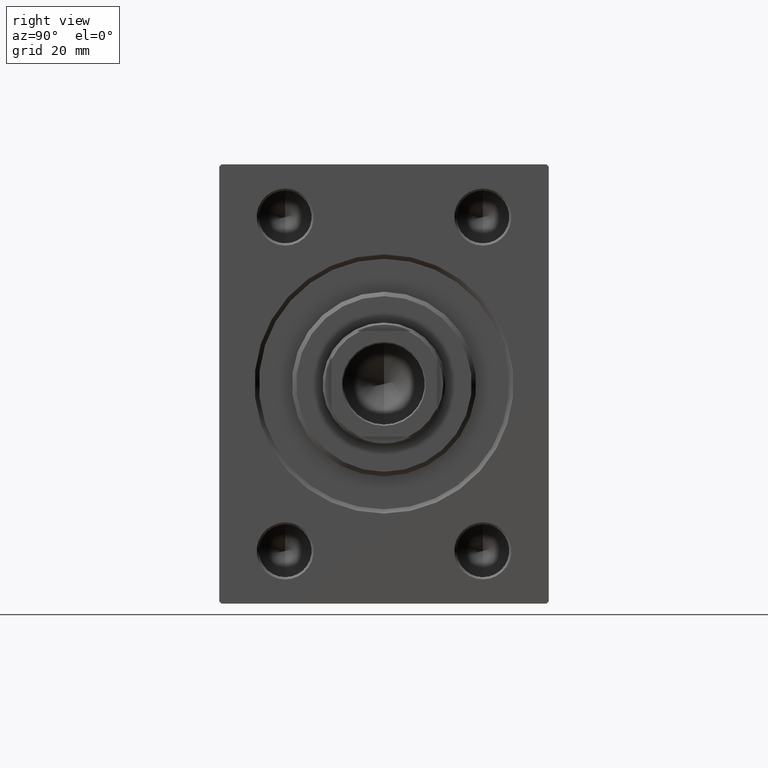
[diagram: clean part render]
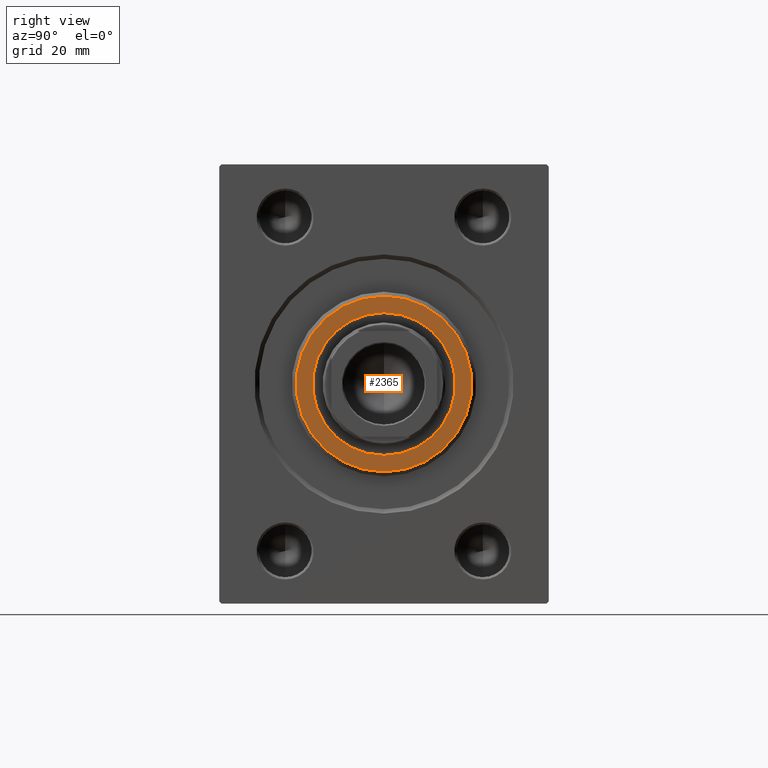
[diagram: same view with one face highlighted and labeled with its STEP entity id]
A machine part, right view. The second image highlights one B-rep face of the part: STEP entity #2365.
In plain terms, the highlighted planar face has unit normal (1, 0, 0).
Its self-contained STEP definition (entity closure, byte-faithful):
#2244 = VERTEX_POINT ( 'NONE', #43933 ) ;
#2365 = ADVANCED_FACE ( 'NONE', ( #35209, #6382 ), #30725, .T. ) ;
#2790 = CIRCLE ( 'NONE', #10813, 16.25000000000000000 ) ;
#3818 = CARTESIAN_POINT ( 'NONE',  ( 3.000000000000000000, 0.000000000000000000, 0.000000000000000000 ) ) ;
#4583 = DIRECTION ( 'NONE',  ( 0.000000000000000000, 0.000000000000000000, -1.000000000000000000 ) ) ;
#6382 = FACE_BOUND ( 'NONE', #25617, .T. ) ;
#10813 = AXIS2_PLACEMENT_3D ( 'NONE', #20398, #30166, #44504 ) ;
#11504 = CIRCLE ( 'NONE', #37617, 16.25000000000000000 ) ;
#11850 = EDGE_CURVE ( 'NONE', #41216, #26277, #35326, .T. ) ;
#13533 = VERTEX_POINT ( 'NONE', #35359 ) ;
#13552 = AXIS2_PLACEMENT_3D ( 'NONE', #30432, #13832, #16800 ) ;
#13832 = DIRECTION ( 'NONE',  ( 1.000000000000000000, -0.000000000000000000, 0.000000000000000000 ) ) ;
#14375 = ORIENTED_EDGE ( 'NONE', *, *, #36648, .F. ) ;
#14519 = DIRECTION ( 'NONE',  ( 0.000000000000000000, 0.000000000000000000, -1.000000000000000000 ) ) ;
#15388 = EDGE_CURVE ( 'NONE', #26277, #41216, #22398, .T. ) ;
#16800 = DIRECTION ( 'NONE',  ( 0.000000000000000000, 0.000000000000000000, -1.000000000000000000 ) ) ;
#17716 = DIRECTION ( 'NONE',  ( 1.000000000000000000, -0.000000000000000000, 0.000000000000000000 ) ) ;
#19022 = CARTESIAN_POINT ( 'NONE',  ( 3.000000000000000000, 2.510525938252075270E-15, -20.00000000000001776 ) ) ;
#20398 = CARTESIAN_POINT ( 'NONE',  ( 3.000000000000000000, 0.000000000000000000, 0.000000000000000000 ) ) ;
#21578 = CARTESIAN_POINT ( 'NONE',  ( 3.000000000000000000, 0.000000000000000000, 0.000000000000000000 ) ) ;
#22398 = CIRCLE ( 'NONE', #25265, 20.00000000000001776 ) ;
#24145 = EDGE_LOOP ( 'NONE', ( #25614, #37556 ) ) ;
#24842 = CARTESIAN_POINT ( 'NONE',  ( 3.000000000000000000, 0.000000000000000000, 0.000000000000000000 ) ) ;
#24978 = DIRECTION ( 'NONE',  ( 1.000000000000000000, -0.000000000000000000, 0.000000000000000000 ) ) ;
#25265 = AXIS2_PLACEMENT_3D ( 'NONE', #3818, #17716, #31583 ) ;
#25614 = ORIENTED_EDGE ( 'NONE', *, *, #11850, .T. ) ;
#25617 = EDGE_LOOP ( 'NONE', ( #14375, #43276 ) ) ;
#26277 = VERTEX_POINT ( 'NONE', #19022 ) ;
#28411 = CARTESIAN_POINT ( 'NONE',  ( 3.000000000000000000, 0.000000000000000000, 20.00000000000001776 ) ) ;
#30166 = DIRECTION ( 'NONE',  ( 1.000000000000000000, 0.000000000000000000, 0.000000000000000000 ) ) ;
#30432 = CARTESIAN_POINT ( 'NONE',  ( 3.000000000000000000, 0.000000000000000000, 0.000000000000000000 ) ) ;
#30725 = PLANE ( 'NONE',  #31570 ) ;
#31570 = AXIS2_PLACEMENT_3D ( 'NONE', #21578, #24978, #14519 ) ;
#31583 = DIRECTION ( 'NONE',  ( 0.000000000000000000, 0.000000000000000000, -1.000000000000000000 ) ) ;
#32342 = DIRECTION ( 'NONE',  ( 1.000000000000000000, 0.000000000000000000, 0.000000000000000000 ) ) ;
#35209 = FACE_OUTER_BOUND ( 'NONE', #24145, .T. ) ;
#35326 = CIRCLE ( 'NONE', #13552, 20.00000000000001776 ) ;
#35359 = CARTESIAN_POINT ( 'NONE',  ( 3.000000000000000000, 1.990051048614449313E-15, 16.25000000000000000 ) ) ;
#36648 = EDGE_CURVE ( 'NONE', #2244, #13533, #2790, .T. ) ;
#37556 = ORIENTED_EDGE ( 'NONE', *, *, #15388, .T. ) ;
#37617 = AXIS2_PLACEMENT_3D ( 'NONE', #24842, #32342, #4583 ) ;
#38275 = EDGE_CURVE ( 'NONE', #13533, #2244, #11504, .T. ) ;
#41216 = VERTEX_POINT ( 'NONE', #28411 ) ;
#43276 = ORIENTED_EDGE ( 'NONE', *, *, #38275, .F. ) ;
#43933 = CARTESIAN_POINT ( 'NONE',  ( 3.000000000000000000, 0.000000000000000000, -16.25000000000000000 ) ) ;
#44504 = DIRECTION ( 'NONE',  ( 0.000000000000000000, 0.000000000000000000, -1.000000000000000000 ) ) ;